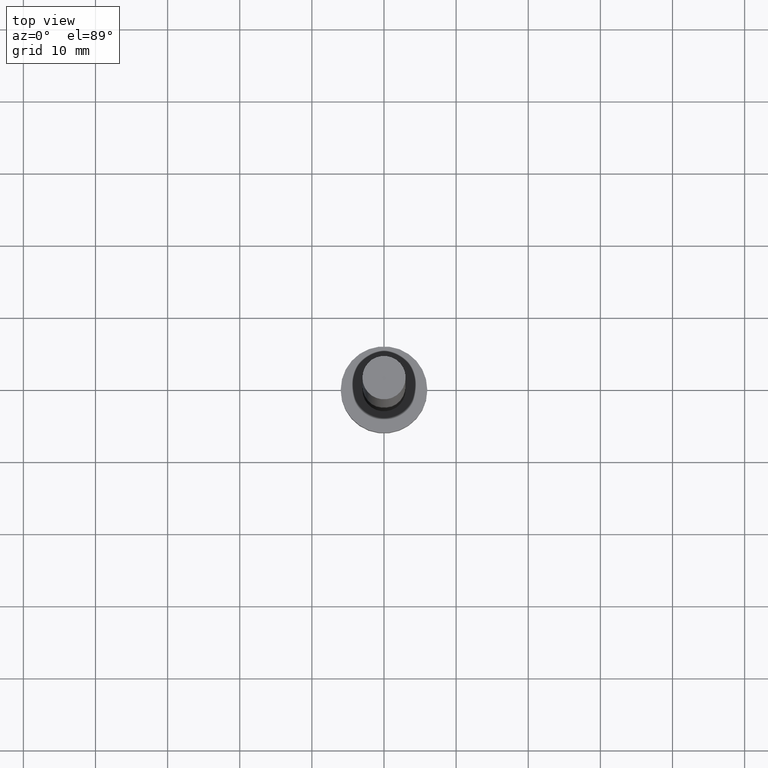
[diagram: clean part render]
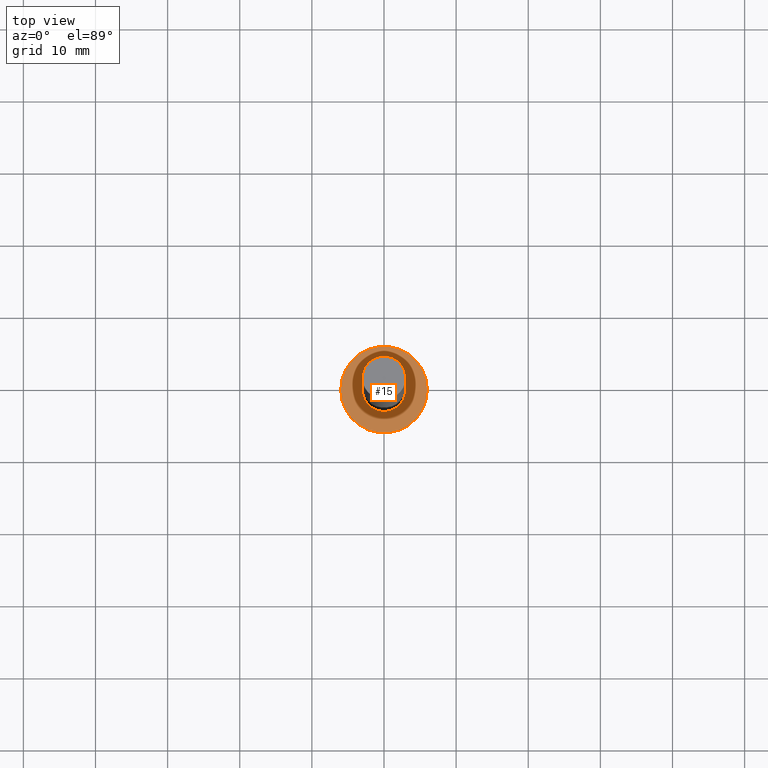
[diagram: same view with one face highlighted and labeled with its STEP entity id]
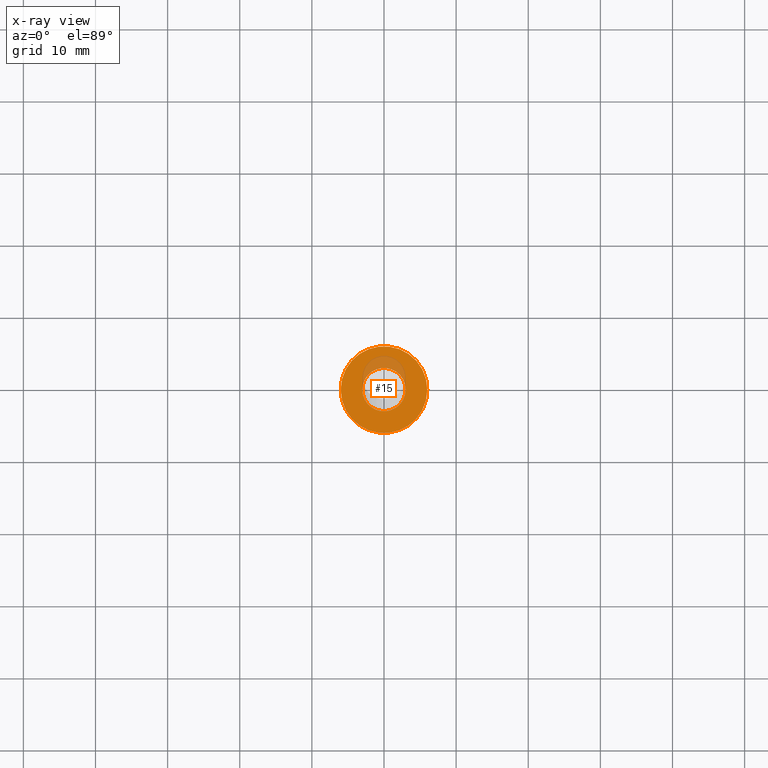
[diagram: x-ray of the same camera — body ghosted, the highlighted face saturated]
A machine part, top view. The second image highlights one B-rep face of the part: STEP entity #15.
The next image is the same camera in x-ray: the body ghosted, the highlighted face saturated — about 12% of this face is hidden behind the body in this view.
In plain terms, the highlighted planar face has unit normal (0, 0, 1).
Its self-contained STEP definition (entity closure, byte-faithful):
#2 = DIRECTION ( 'NONE',  ( 1.000000000000000000, 0.000000000000000000, 0.000000000000000000 ) ) ;
#3 = CIRCLE ( 'NONE', #38, 6.000000000000000888 ) ;
#15 = ADVANCED_FACE ( 'NONE', ( #150, #46 ), #61, .T. ) ;
#24 = DIRECTION ( 'NONE',  ( 0.000000000000000000, 0.000000000000000000, 1.000000000000000000 ) ) ;
#37 = ORIENTED_EDGE ( 'NONE', *, *, #136, .T. ) ;
#38 = AXIS2_PLACEMENT_3D ( 'NONE', #227, #139, #85 ) ;
#41 = ORIENTED_EDGE ( 'NONE', *, *, #218, .F. ) ;
#46 = FACE_OUTER_BOUND ( 'NONE', #238, .T. ) ;
#59 = VERTEX_POINT ( 'NONE', #222 ) ;
#61 = PLANE ( 'NONE',  #169 ) ;
#67 = CIRCLE ( 'NONE', #97, 6.000000000000000888 ) ;
#68 = DIRECTION ( 'NONE',  ( 1.000000000000000000, 0.000000000000000000, 0.000000000000000000 ) ) ;
#78 = AXIS2_PLACEMENT_3D ( 'NONE', #127, #24, #2 ) ;
#81 = VERTEX_POINT ( 'NONE', #204 ) ;
#85 = DIRECTION ( 'NONE',  ( 1.000000000000000000, 0.000000000000000000, 0.000000000000000000 ) ) ;
#86 = VERTEX_POINT ( 'NONE', #241 ) ;
#90 = EDGE_LOOP ( 'NONE', ( #187, #41 ) ) ;
#91 = CARTESIAN_POINT ( 'NONE',  ( 0.000000000000000000, 0.000000000000000000, 5.000000000000000000 ) ) ;
#95 = AXIS2_PLACEMENT_3D ( 'NONE', #91, #142, #191 ) ;
#96 = EDGE_CURVE ( 'NONE', #103, #86, #182, .T. ) ;
#97 = AXIS2_PLACEMENT_3D ( 'NONE', #123, #156, #68 ) ;
#99 = CARTESIAN_POINT ( 'NONE',  ( -3.000000000000000444, 0.000000000000000000, 5.000000000000000000 ) ) ;
#103 = VERTEX_POINT ( 'NONE', #99 ) ;
#123 = CARTESIAN_POINT ( 'NONE',  ( 0.000000000000000000, 0.000000000000000000, 5.000000000000000000 ) ) ;
#127 = CARTESIAN_POINT ( 'NONE',  ( 0.000000000000000000, 0.000000000000000000, 5.000000000000000000 ) ) ;
#136 = EDGE_CURVE ( 'NONE', #59, #81, #3, .T. ) ;
#139 = DIRECTION ( 'NONE',  ( 0.000000000000000000, 0.000000000000000000, 1.000000000000000000 ) ) ;
#140 = EDGE_CURVE ( 'NONE', #81, #59, #67, .T. ) ;
#142 = DIRECTION ( 'NONE',  ( 0.000000000000000000, 0.000000000000000000, 1.000000000000000000 ) ) ;
#148 = CARTESIAN_POINT ( 'NONE',  ( 0.000000000000000000, 0.000000000000000000, 5.000000000000000000 ) ) ;
#150 = FACE_BOUND ( 'NONE', #90, .T. ) ;
#156 = DIRECTION ( 'NONE',  ( 0.000000000000000000, 0.000000000000000000, 1.000000000000000000 ) ) ;
#169 = AXIS2_PLACEMENT_3D ( 'NONE', #148, #181, #225 ) ;
#180 = ORIENTED_EDGE ( 'NONE', *, *, #140, .T. ) ;
#181 = DIRECTION ( 'NONE',  ( 0.000000000000000000, 0.000000000000000000, 1.000000000000000000 ) ) ;
#182 = CIRCLE ( 'NONE', #78, 3.000000000000000444 ) ;
#187 = ORIENTED_EDGE ( 'NONE', *, *, #96, .F. ) ;
#191 = DIRECTION ( 'NONE',  ( 1.000000000000000000, 0.000000000000000000, 0.000000000000000000 ) ) ;
#204 = CARTESIAN_POINT ( 'NONE',  ( -6.000000000000000888, 0.000000000000000000, 5.000000000000000000 ) ) ;
#218 = EDGE_CURVE ( 'NONE', #86, #103, #253, .T. ) ;
#222 = CARTESIAN_POINT ( 'NONE',  ( 6.000000000000000888, 7.347880794884120722E-16, 5.000000000000000000 ) ) ;
#225 = DIRECTION ( 'NONE',  ( 1.000000000000000000, 0.000000000000000000, -0.000000000000000000 ) ) ;
#227 = CARTESIAN_POINT ( 'NONE',  ( 0.000000000000000000, 0.000000000000000000, 5.000000000000000000 ) ) ;
#238 = EDGE_LOOP ( 'NONE', ( #180, #37 ) ) ;
#241 = CARTESIAN_POINT ( 'NONE',  ( 3.000000000000000444, 3.673940397442060361E-16, 5.000000000000000000 ) ) ;
#253 = CIRCLE ( 'NONE', #95, 3.000000000000000444 ) ;